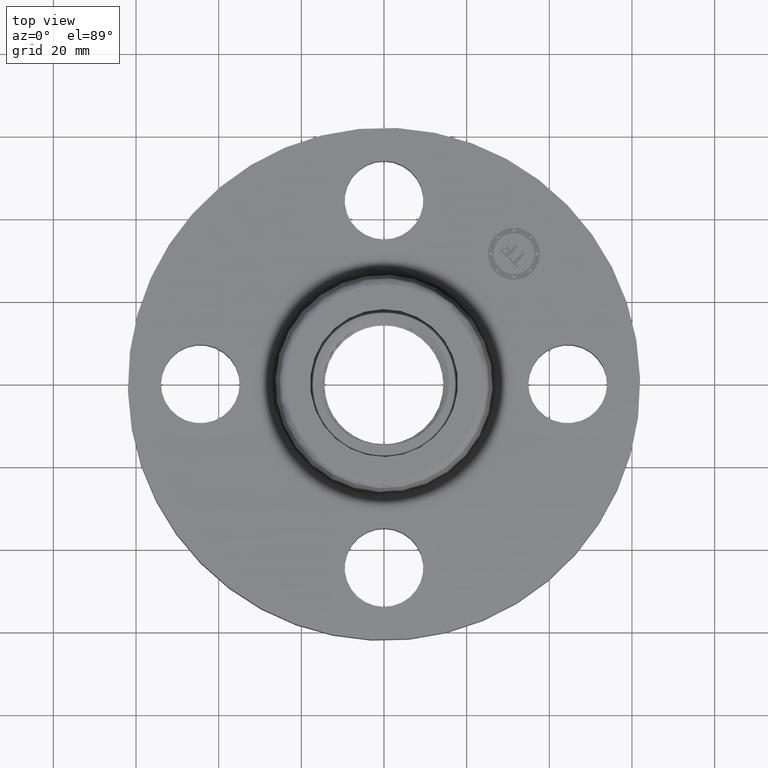
[diagram: clean part render]
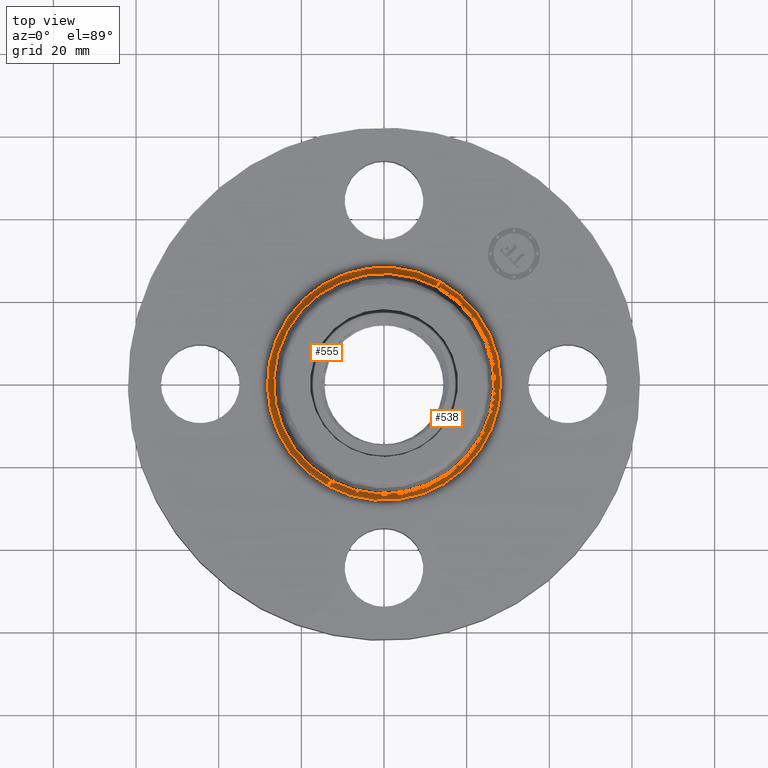
[diagram: same view with one multi-face feature highlighted, each face labeled with its STEP entity id]
A machine part, top view. The highlighted faces form ONE feature: a constant-radius fillet chain: 2 tangent blend faces with common blend radius 1.524 mm. The faces share edges in the B-rep.
Their STEP definitions:
[1] entity #538 (Torus):
#502=AXIS2_PLACEMENT_3D('Torus Axis2P3D',#499,#500,#501) ;
#506=AXIS2_PLACEMENT_3D('Circle Axis2P3D',#504,#505,$) ;
#515=AXIS2_PLACEMENT_3D('Circle Axis2P3D',#513,#514,$) ;
#522=AXIS2_PLACEMENT_3D('Circle Axis2P3D',#520,#521,$) ;
#529=AXIS2_PLACEMENT_3D('Circle Axis2P3D',#527,#528,$) ;
#499=CARTESIAN_POINT('Axis2P3D Location',(0.,0.,0.680000000003)) ;
#504=CARTESIAN_POINT('Axis2P3D Location',(0.,0.,0.620000000002)) ;
#508=CARTESIAN_POINT('Vertex',(0.53232821848,0.974420267848,0.620000000002)) ;
#510=CARTESIAN_POINT('Vertex',(-0.53232821848,-0.974420267848,0.620000000002)) ;
#513=CARTESIAN_POINT('Axis2P3D Location',(0.53232821848,0.974420267848,0.680000000003)) ;
#517=CARTESIAN_POINT('Vertex',(0.503999699235,0.922565261197,0.669581109343)) ;
#520=CARTESIAN_POINT('Axis2P3D Location',(0.,0.,0.669581109343)) ;
#524=CARTESIAN_POINT('Vertex',(-0.503999699235,-0.922565261197,0.669581109343)) ;
#527=CARTESIAN_POINT('Axis2P3D Location',(-0.53232821848,-0.974420267848,0.680000000003)) ;
#500=DIRECTION('Axis2P3D Direction',(0.,0.,-0.0393700787402)) ;
#501=DIRECTION('Axis2P3D XDirection',(-0.0188750212049,-0.0345504945626,0.)) ;
#505=DIRECTION('Axis2P3D Direction',(0.,0.,-0.0393700787402)) ;
#514=DIRECTION('Axis2P3D Direction',(-0.0345504945626,0.0188750212049,0.)) ;
#521=DIRECTION('Axis2P3D Direction',(0.,0.,-0.0393700787402)) ;
#528=DIRECTION('Axis2P3D Direction',(0.0345504945626,-0.0188750212049,0.)) ;
#533=ORIENTED_EDGE('',*,*,#512,.F.) ;
#534=ORIENTED_EDGE('',*,*,#519,.T.) ;
#535=ORIENTED_EDGE('',*,*,#526,.T.) ;
#536=ORIENTED_EDGE('',*,*,#531,.F.) ;
#538=ADVANCED_FACE('PartBody',(#537),#503,.F.) ;
#507=CIRCLE('generated circle',#506,1.11034597788) ;
#516=CIRCLE('generated circle',#515,0.0600000000002) ;
#523=CIRCLE('generated circle',#522,1.05125751269) ;
#530=CIRCLE('generated circle',#529,0.0600000000002) ;
#503=TOROIDAL_SURFACE('homeo Torus',#502,1.11034597788,0.0600000000002) ;
#512=EDGE_CURVE('',#509,#511,#507,.T.) ;
#519=EDGE_CURVE('',#509,#518,#516,.T.) ;
#526=EDGE_CURVE('',#518,#525,#523,.T.) ;
#531=EDGE_CURVE('',#511,#525,#530,.T.) ;
#532=EDGE_LOOP('',(#533,#534,#535,#536)) ;
#537=FACE_OUTER_BOUND('',#532,.T.) ;
#509=VERTEX_POINT('',#508) ;
#511=VERTEX_POINT('',#510) ;
#518=VERTEX_POINT('',#517) ;
#525=VERTEX_POINT('',#524) ;
[2] entity #555 (Torus):
#502=AXIS2_PLACEMENT_3D('Torus Axis2P3D',#499,#500,#501) ;
#515=AXIS2_PLACEMENT_3D('Circle Axis2P3D',#513,#514,$) ;
#529=AXIS2_PLACEMENT_3D('Circle Axis2P3D',#527,#528,$) ;
#541=AXIS2_PLACEMENT_3D('Circle Axis2P3D',#539,#540,$) ;
#546=AXIS2_PLACEMENT_3D('Circle Axis2P3D',#544,#545,$) ;
#499=CARTESIAN_POINT('Axis2P3D Location',(0.,0.,0.680000000003)) ;
#508=CARTESIAN_POINT('Vertex',(0.53232821848,0.974420267848,0.620000000002)) ;
#510=CARTESIAN_POINT('Vertex',(-0.53232821848,-0.974420267848,0.620000000002)) ;
#513=CARTESIAN_POINT('Axis2P3D Location',(0.53232821848,0.974420267848,0.680000000003)) ;
#517=CARTESIAN_POINT('Vertex',(0.503999699235,0.922565261197,0.669581109343)) ;
#524=CARTESIAN_POINT('Vertex',(-0.503999699235,-0.922565261197,0.669581109343)) ;
#527=CARTESIAN_POINT('Axis2P3D Location',(-0.53232821848,-0.974420267848,0.680000000003)) ;
#539=CARTESIAN_POINT('Axis2P3D Location',(0.,0.,0.620000000002)) ;
#544=CARTESIAN_POINT('Axis2P3D Location',(0.,0.,0.669581109343)) ;
#500=DIRECTION('Axis2P3D Direction',(0.,0.,-0.0393700787402)) ;
#501=DIRECTION('Axis2P3D XDirection',(-0.0188750212049,-0.0345504945626,0.)) ;
#514=DIRECTION('Axis2P3D Direction',(-0.0345504945626,0.0188750212049,0.)) ;
#528=DIRECTION('Axis2P3D Direction',(0.0345504945626,-0.0188750212049,0.)) ;
#540=DIRECTION('Axis2P3D Direction',(0.,0.,-0.0393700787402)) ;
#545=DIRECTION('Axis2P3D Direction',(0.,0.,-0.0393700787402)) ;
#550=ORIENTED_EDGE('',*,*,#543,.F.) ;
#551=ORIENTED_EDGE('',*,*,#531,.T.) ;
#552=ORIENTED_EDGE('',*,*,#548,.T.) ;
#553=ORIENTED_EDGE('',*,*,#519,.F.) ;
#555=ADVANCED_FACE('PartBody',(#554),#503,.F.) ;
#516=CIRCLE('generated circle',#515,0.0600000000002) ;
#530=CIRCLE('generated circle',#529,0.0600000000002) ;
#542=CIRCLE('generated circle',#541,1.11034597788) ;
#547=CIRCLE('generated circle',#546,1.05125751269) ;
#503=TOROIDAL_SURFACE('homeo Torus',#502,1.11034597788,0.0600000000002) ;
#519=EDGE_CURVE('',#509,#518,#516,.T.) ;
#531=EDGE_CURVE('',#511,#525,#530,.T.) ;
#543=EDGE_CURVE('',#511,#509,#542,.T.) ;
#548=EDGE_CURVE('',#525,#518,#547,.T.) ;
#549=EDGE_LOOP('',(#550,#551,#552,#553)) ;
#554=FACE_OUTER_BOUND('',#549,.T.) ;
#509=VERTEX_POINT('',#508) ;
#511=VERTEX_POINT('',#510) ;
#518=VERTEX_POINT('',#517) ;
#525=VERTEX_POINT('',#524) ;